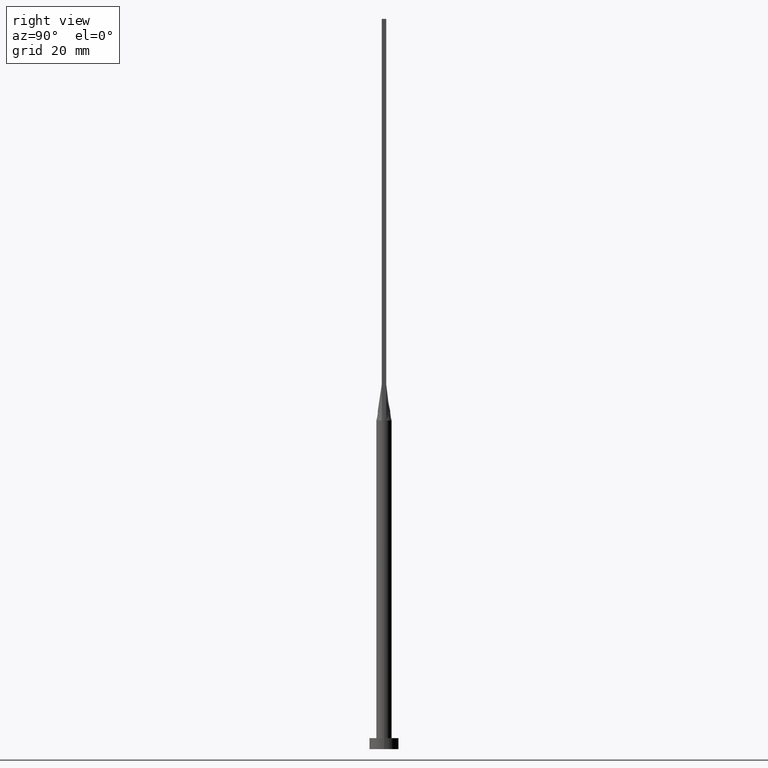
[diagram: clean part render]
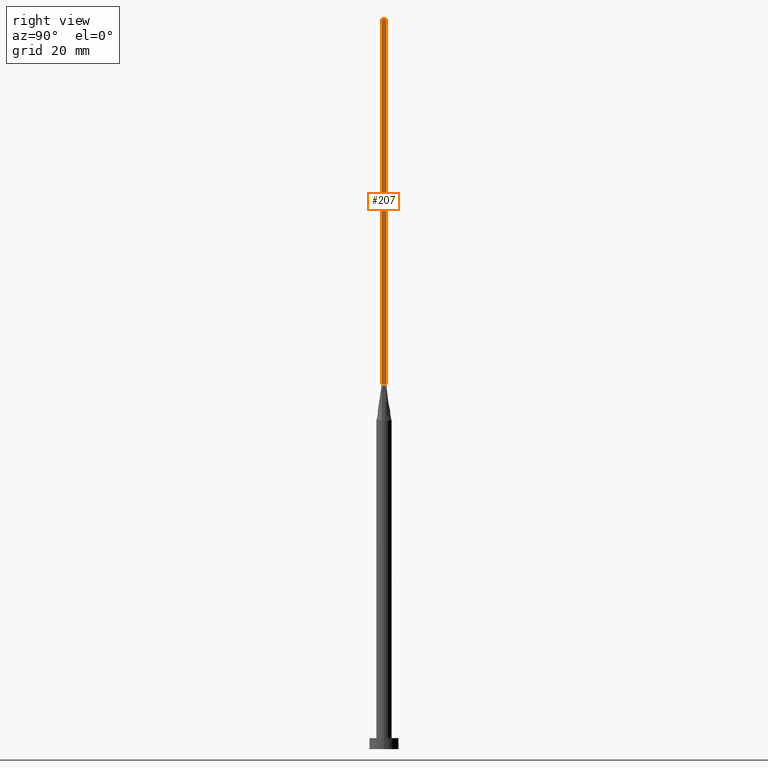
[diagram: same view with one face highlighted and labeled with its STEP entity id]
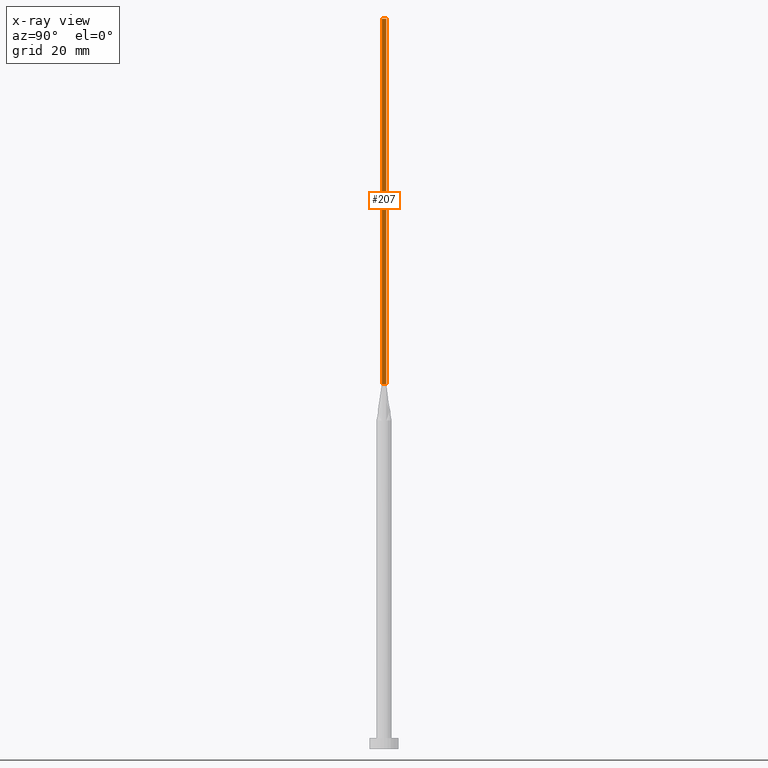
[diagram: x-ray of the same camera — body ghosted, the highlighted face saturated]
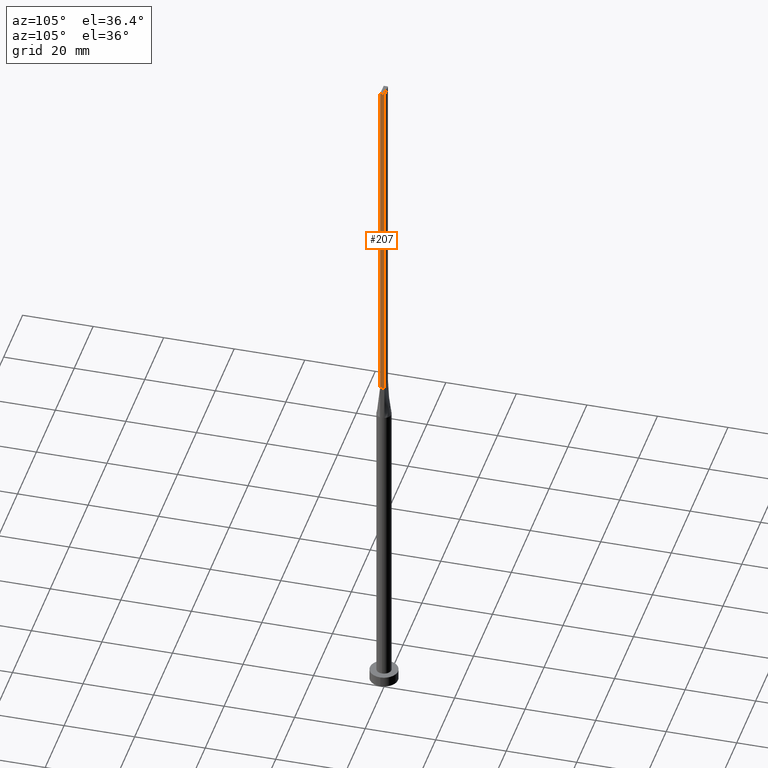
[diagram: same view with one face highlighted and labeled with its STEP entity id]
A machine part, right view. The second image highlights one B-rep face of the part: STEP entity #207.
The next image is the same camera in x-ray: the body ghosted, the highlighted face saturated — about 0% of this face is hidden behind the body in this view.
A second angle (auxiliary view) of the same face is appended — the face is thin or edge-on in the first view.
In plain terms, the highlighted planar face has unit normal (-1, 0, 0).
Its self-contained STEP definition (entity closure, byte-faithful):
#15 = ORIENTED_EDGE ( 'NONE', *, *, #545, .F. ) ;
#20 = AXIS2_PLACEMENT_3D ( 'NONE', #283, #324, #335 ) ;
#25 = DIRECTION ( 'NONE',  ( -1.807003620809174139E-16, 1.000000000000000000, -0.000000000000000000 ) ) ;
#46 = CARTESIAN_POINT ( 'NONE',  ( 1.899999999999999023, -0.5999999999999997558, 99.99999999999998579 ) ) ;
#63 = EDGE_CURVE ( 'NONE', #367, #495, #397, .T. ) ;
#72 = VECTOR ( 'NONE', #392, 1000.000000000000000 ) ;
#80 = VERTEX_POINT ( 'NONE', #46 ) ;
#121 = VECTOR ( 'NONE', #453, 1000.000000000000000 ) ;
#140 = EDGE_CURVE ( 'NONE', #367, #80, #259, .T. ) ;
#149 = CARTESIAN_POINT ( 'NONE',  ( 1.899999999999999689, 0.6000000000000001998, 200.0000000000000000 ) ) ;
#171 = VECTOR ( 'NONE', #25, 1000.000000000000000 ) ;
#190 = VECTOR ( 'NONE', #434, 1000.000000000000000 ) ;
#192 = CARTESIAN_POINT ( 'NONE',  ( 1.899999999999999689, 0.6000000000000001998, 99.99999999999998579 ) ) ;
#201 = LINE ( 'NONE', #560, #72 ) ;
#207 = ADVANCED_FACE ( 'NONE', ( #445 ), #406, .F. ) ;
#229 = EDGE_LOOP ( 'NONE', ( #330, #15, #352, #440 ) ) ;
#247 = LINE ( 'NONE', #394, #171 ) ;
#259 = LINE ( 'NONE', #308, #121 ) ;
#283 = CARTESIAN_POINT ( 'NONE',  ( 1.899999999999999023, -0.5999999999999997558, 200.0000000000000000 ) ) ;
#299 = VERTEX_POINT ( 'NONE', #192 ) ;
#308 = CARTESIAN_POINT ( 'NONE',  ( 1.899999999999999023, -0.5999999999999997558, 200.0000000000000000 ) ) ;
#324 = DIRECTION ( 'NONE',  ( -1.000000000000000000, 5.421010862427522170E-16, 0.000000000000000000 ) ) ;
#330 = ORIENTED_EDGE ( 'NONE', *, *, #540, .T. ) ;
#335 = DIRECTION ( 'NONE',  ( -5.421010862427522170E-16, -1.000000000000000000, 0.000000000000000000 ) ) ;
#352 = ORIENTED_EDGE ( 'NONE', *, *, #63, .F. ) ;
#367 = VERTEX_POINT ( 'NONE', #488 ) ;
#392 = DIRECTION ( 'NONE',  ( -0.000000000000000000, -0.000000000000000000, -1.000000000000000000 ) ) ;
#394 = CARTESIAN_POINT ( 'NONE',  ( 1.899999999999999689, 0.6000000000000001998, 99.99999999999998579 ) ) ;
#397 = LINE ( 'NONE', #527, #190 ) ;
#406 = PLANE ( 'NONE',  #20 ) ;
#434 = DIRECTION ( 'NONE',  ( 5.421010862427522170E-16, 1.000000000000000000, 0.000000000000000000 ) ) ;
#440 = ORIENTED_EDGE ( 'NONE', *, *, #140, .T. ) ;
#445 = FACE_OUTER_BOUND ( 'NONE', #229, .T. ) ;
#453 = DIRECTION ( 'NONE',  ( -0.000000000000000000, -0.000000000000000000, -1.000000000000000000 ) ) ;
#488 = CARTESIAN_POINT ( 'NONE',  ( 1.899999999999999023, -0.5999999999999997558, 200.0000000000000000 ) ) ;
#495 = VERTEX_POINT ( 'NONE', #149 ) ;
#527 = CARTESIAN_POINT ( 'NONE',  ( 1.899999999999999023, -0.5999999999999997558, 200.0000000000000000 ) ) ;
#540 = EDGE_CURVE ( 'NONE', #80, #299, #247, .T. ) ;
#545 = EDGE_CURVE ( 'NONE', #495, #299, #201, .T. ) ;
#560 = CARTESIAN_POINT ( 'NONE',  ( 1.899999999999999689, 0.6000000000000001998, 200.0000000000000000 ) ) ;